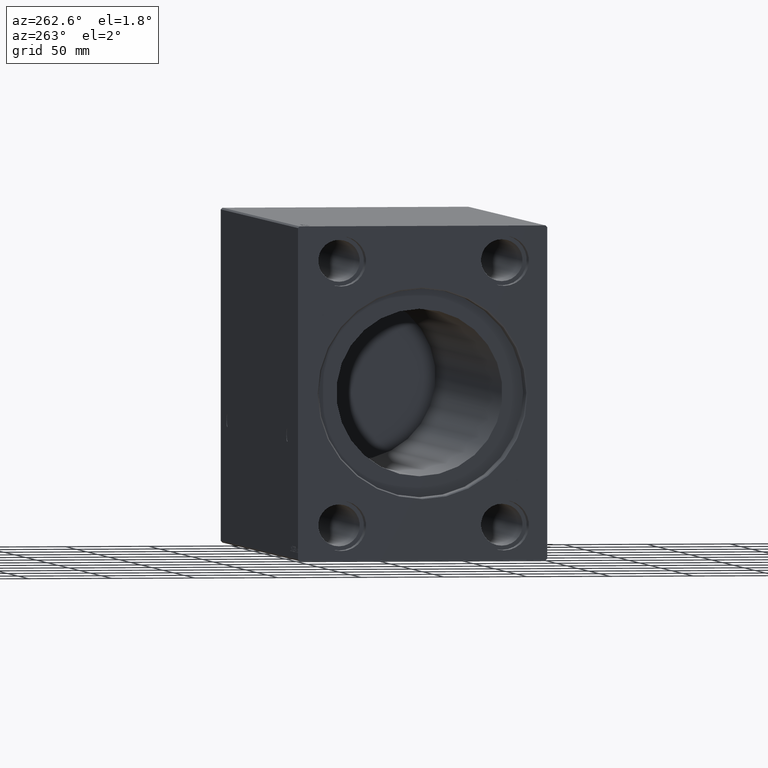
[diagram: clean part render]
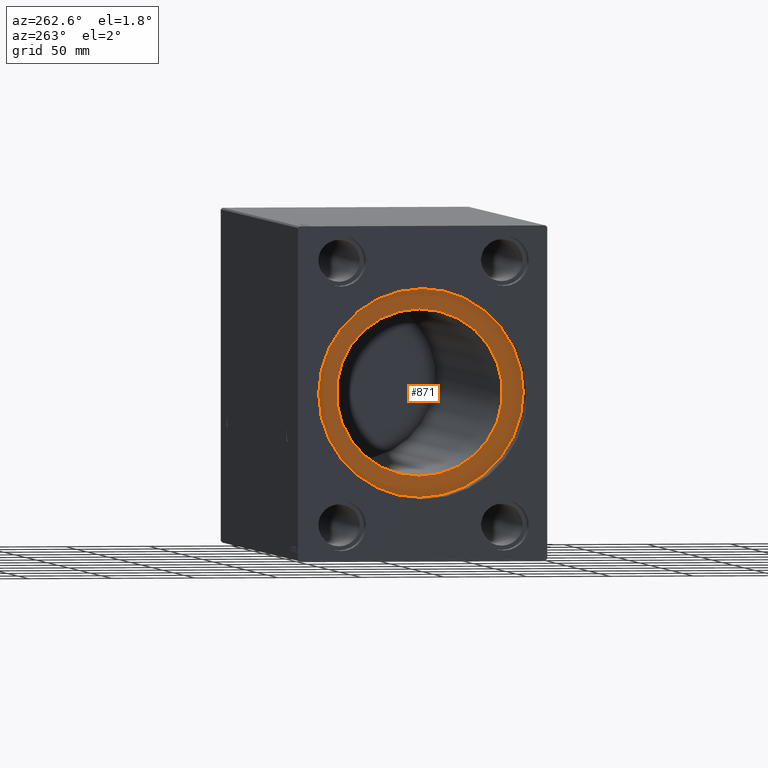
[diagram: same view with one face highlighted and labeled with its STEP entity id]
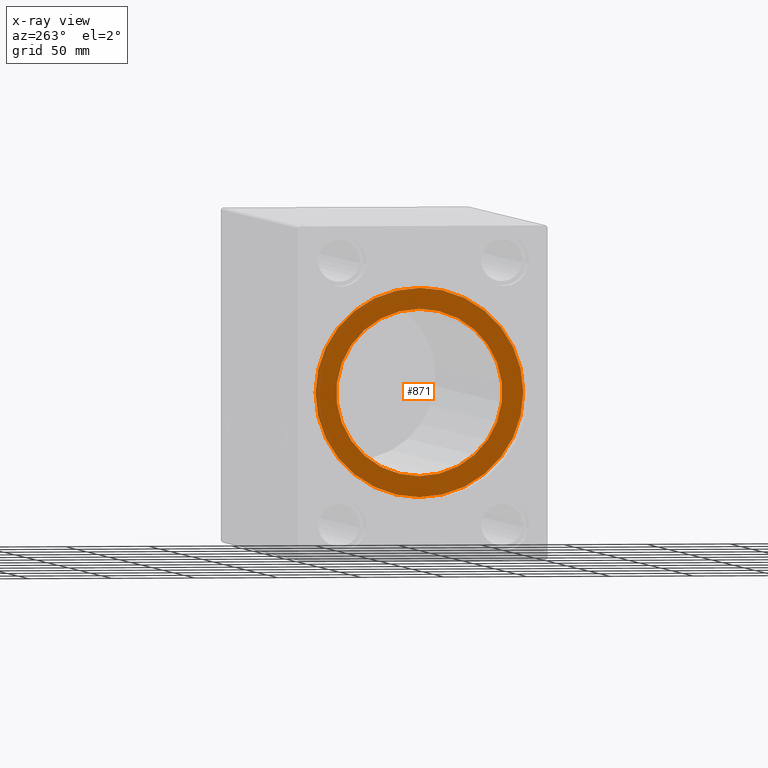
[diagram: x-ray of the same camera — body ghosted, the highlighted face saturated]
A machine part, auxiliary view. The second image highlights one B-rep face of the part: STEP entity #871.
The next image is the same camera in x-ray: the body ghosted, the highlighted face saturated — about 0% of this face is hidden behind the body in this view.
In plain terms, the highlighted planar face has unit normal (-1, 0, 0).
Its self-contained STEP definition (entity closure, byte-faithful):
#650 = EDGE_LOOP ( 'NONE', ( #21372, #15635 ) ) ;
#871 = ADVANCED_FACE ( 'NONE', ( #40109, #14328 ), #33876, .T. ) ;
#1809 = VERTEX_POINT ( 'NONE', #38024 ) ;
#2019 = DIRECTION ( 'NONE',  ( 0.000000000000000000, 0.000000000000000000, 1.000000000000000000 ) ) ;
#4748 = VERTEX_POINT ( 'NONE', #5418 ) ;
#5418 = CARTESIAN_POINT ( 'NONE',  ( 15.00000000000000000, 0.000000000000000000, 62.50000000000000000 ) ) ;
#6879 = CIRCLE ( 'NONE', #17188, 50.00000000000000000 ) ;
#7152 = EDGE_CURVE ( 'NONE', #9193, #1809, #6879, .T. ) ;
#7256 = DIRECTION ( 'NONE',  ( 0.000000000000000000, 0.000000000000000000, 1.000000000000000000 ) ) ;
#7383 = DIRECTION ( 'NONE',  ( 0.000000000000000000, 0.000000000000000000, 1.000000000000000000 ) ) ;
#8457 = DIRECTION ( 'NONE',  ( -1.000000000000000000, 0.000000000000000000, 0.000000000000000000 ) ) ;
#9003 = DIRECTION ( 'NONE',  ( 0.000000000000000000, 0.000000000000000000, 1.000000000000000000 ) ) ;
#9193 = VERTEX_POINT ( 'NONE', #24511 ) ;
#10436 = EDGE_LOOP ( 'NONE', ( #23009, #22377 ) ) ;
#10446 = AXIS2_PLACEMENT_3D ( 'NONE', #40678, #31451, #2019 ) ;
#12305 = DIRECTION ( 'NONE',  ( 0.000000000000000000, 0.000000000000000000, 1.000000000000000000 ) ) ;
#14328 = FACE_OUTER_BOUND ( 'NONE', #10436, .T. ) ;
#14774 = AXIS2_PLACEMENT_3D ( 'NONE', #40240, #21340, #7383 ) ;
#15635 = ORIENTED_EDGE ( 'NONE', *, *, #7152, .F. ) ;
#17188 = AXIS2_PLACEMENT_3D ( 'NONE', #25218, #8457, #12305 ) ;
#21340 = DIRECTION ( 'NONE',  ( -1.000000000000000000, 0.000000000000000000, 0.000000000000000000 ) ) ;
#21372 = ORIENTED_EDGE ( 'NONE', *, *, #24216, .F. ) ;
#21462 = EDGE_CURVE ( 'NONE', #4748, #31906, #33290, .T. ) ;
#22377 = ORIENTED_EDGE ( 'NONE', *, *, #39527, .T. ) ;
#23009 = ORIENTED_EDGE ( 'NONE', *, *, #21462, .T. ) ;
#23495 = CIRCLE ( 'NONE', #10446, 62.50000000000000000 ) ;
#24216 = EDGE_CURVE ( 'NONE', #1809, #9193, #37345, .T. ) ;
#24511 = CARTESIAN_POINT ( 'NONE',  ( 15.00000000000001421, 6.123233995736766085E-15, -50.00000000000000000 ) ) ;
#25218 = CARTESIAN_POINT ( 'NONE',  ( 15.00000000000001421, 0.000000000000000000, 0.000000000000000000 ) ) ;
#27073 = AXIS2_PLACEMENT_3D ( 'NONE', #40362, #38210, #9003 ) ;
#31451 = DIRECTION ( 'NONE',  ( -1.000000000000000000, 0.000000000000000000, 0.000000000000000000 ) ) ;
#31802 = CARTESIAN_POINT ( 'NONE',  ( 15.00000000000000000, 7.654042494670957804E-15, -62.50000000000000000 ) ) ;
#31906 = VERTEX_POINT ( 'NONE', #31802 ) ;
#33290 = CIRCLE ( 'NONE', #14774, 62.50000000000000000 ) ;
#33876 = PLANE ( 'NONE',  #36340 ) ;
#36340 = AXIS2_PLACEMENT_3D ( 'NONE', #37514, #40523, #7256 ) ;
#37345 = CIRCLE ( 'NONE', #27073, 50.00000000000000000 ) ;
#37514 = CARTESIAN_POINT ( 'NONE',  ( 15.00000000000000000, 0.000000000000000000, 0.000000000000000000 ) ) ;
#38024 = CARTESIAN_POINT ( 'NONE',  ( 15.00000000000001421, 0.000000000000000000, 50.00000000000000000 ) ) ;
#38210 = DIRECTION ( 'NONE',  ( -1.000000000000000000, 0.000000000000000000, 0.000000000000000000 ) ) ;
#39527 = EDGE_CURVE ( 'NONE', #31906, #4748, #23495, .T. ) ;
#40109 = FACE_BOUND ( 'NONE', #650, .T. ) ;
#40240 = CARTESIAN_POINT ( 'NONE',  ( 15.00000000000000000, 0.000000000000000000, 0.000000000000000000 ) ) ;
#40362 = CARTESIAN_POINT ( 'NONE',  ( 15.00000000000001421, 0.000000000000000000, 0.000000000000000000 ) ) ;
#40523 = DIRECTION ( 'NONE',  ( -1.000000000000000000, 0.000000000000000000, 0.000000000000000000 ) ) ;
#40678 = CARTESIAN_POINT ( 'NONE',  ( 15.00000000000000000, 0.000000000000000000, 0.000000000000000000 ) ) ;